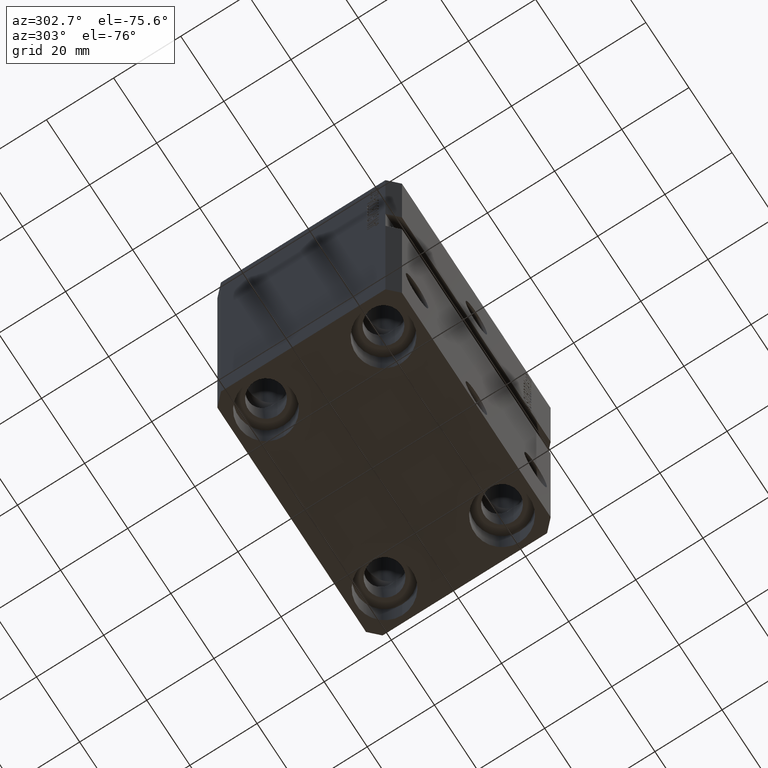
[diagram: clean part render]
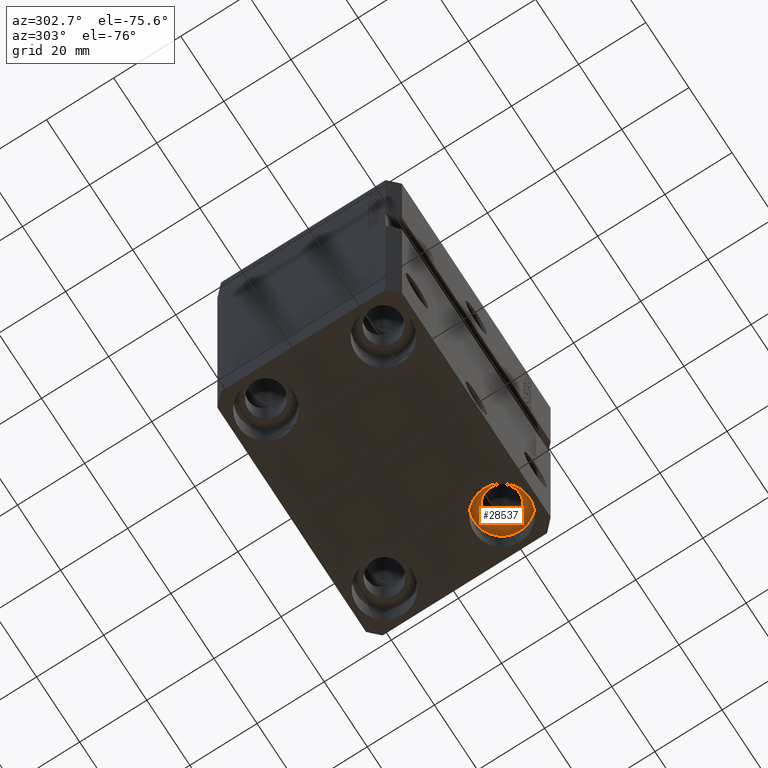
[diagram: same view with one face highlighted and labeled with its STEP entity id]
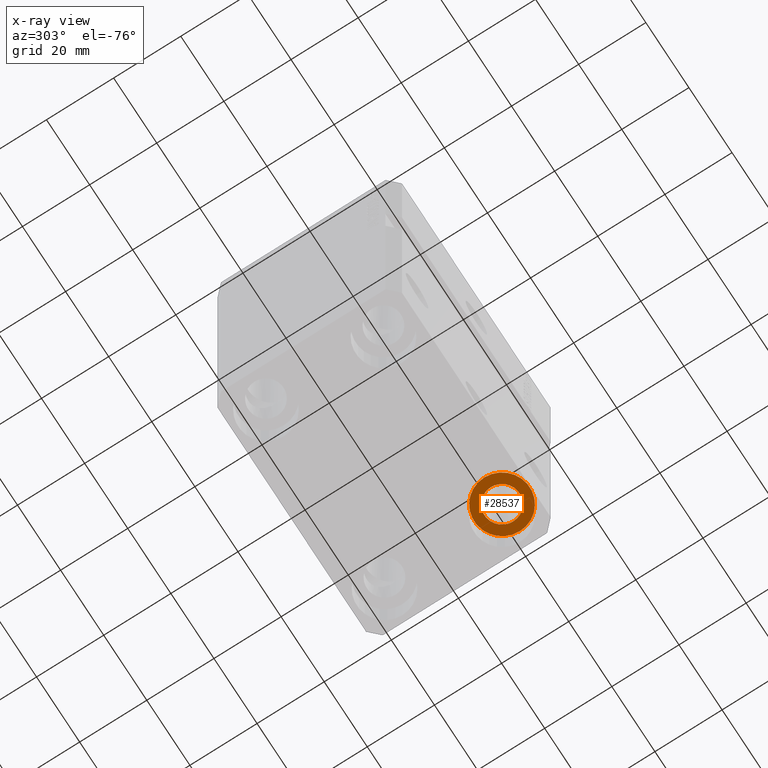
[diagram: x-ray of the same camera — body ghosted, the highlighted face saturated]
A machine part, auxiliary view. The second image highlights one B-rep face of the part: STEP entity #28537.
The next image is the same camera in x-ray: the body ghosted, the highlighted face saturated — about 0% of this face is hidden behind the body in this view.
In plain terms, the highlighted planar face has unit normal (0, 0, -1).
Its self-contained STEP definition (entity closure, byte-faithful):
#2364 = CARTESIAN_POINT ( 'NONE',  ( 19.25000000000000000, -17.50000000000000000, -99.00000000000000000 ) ) ;
#4352 = CARTESIAN_POINT ( 'NONE',  ( 27.50000000000000355, -17.50000000000000000, -99.00000000000000000 ) ) ;
#9583 = DIRECTION ( 'NONE',  ( -0.000000000000000000, -0.000000000000000000, 1.000000000000000000 ) ) ;
#10174 = CARTESIAN_POINT ( 'NONE',  ( 27.50000000000000355, -17.50000000000000000, -99.00000000000000000 ) ) ;
#10601 = CIRCLE ( 'NONE', #17307, 5.249999999999997335 ) ;
#11459 = DIRECTION ( 'NONE',  ( 1.000000000000000000, 0.000000000000000000, 0.000000000000000000 ) ) ;
#12390 = PLANE ( 'NONE',  #22841 ) ;
#14374 = EDGE_CURVE ( 'NONE', #33093, #29594, #10601, .T. ) ;
#14569 = VERTEX_POINT ( 'NONE', #16113 ) ;
#15664 = DIRECTION ( 'NONE',  ( 1.000000000000000000, 0.000000000000000000, 0.000000000000000000 ) ) ;
#16113 = CARTESIAN_POINT ( 'NONE',  ( 35.75000000000000711, -17.50000000000000000, -99.00000000000000000 ) ) ;
#16539 = EDGE_CURVE ( 'NONE', #32513, #14569, #37513, .T. ) ;
#17248 = AXIS2_PLACEMENT_3D ( 'NONE', #37371, #36461, #11459 ) ;
#17307 = AXIS2_PLACEMENT_3D ( 'NONE', #4352, #43851, #36155 ) ;
#19626 = CARTESIAN_POINT ( 'NONE',  ( 27.50000000000000355, -17.50000000000000000, -99.00000000000000000 ) ) ;
#21280 = CARTESIAN_POINT ( 'NONE',  ( 22.25000000000000711, -17.50000000000000000, -99.00000000000000000 ) ) ;
#22841 = AXIS2_PLACEMENT_3D ( 'NONE', #19626, #37166, #15664 ) ;
#23354 = ORIENTED_EDGE ( 'NONE', *, *, #14374, .F. ) ;
#25668 = ORIENTED_EDGE ( 'NONE', *, *, #31261, .F. ) ;
#27394 = AXIS2_PLACEMENT_3D ( 'NONE', #10174, #42196, #39581 ) ;
#27576 = DIRECTION ( 'NONE',  ( 1.000000000000000000, 0.000000000000000000, 0.000000000000000000 ) ) ;
#28326 = ORIENTED_EDGE ( 'NONE', *, *, #16539, .F. ) ;
#28537 = ADVANCED_FACE ( 'NONE', ( #44656, #36944 ), #12390, .T. ) ;
#29594 = VERTEX_POINT ( 'NONE', #21280 ) ;
#31083 = CARTESIAN_POINT ( 'NONE',  ( 27.50000000000000355, -17.50000000000000000, -99.00000000000000000 ) ) ;
#31261 = EDGE_CURVE ( 'NONE', #29594, #33093, #35515, .T. ) ;
#32314 = AXIS2_PLACEMENT_3D ( 'NONE', #31083, #9583, #27576 ) ;
#32513 = VERTEX_POINT ( 'NONE', #2364 ) ;
#33093 = VERTEX_POINT ( 'NONE', #38465 ) ;
#33668 = CIRCLE ( 'NONE', #17248, 8.250000000000000000 ) ;
#34108 = ORIENTED_EDGE ( 'NONE', *, *, #37594, .F. ) ;
#35515 = CIRCLE ( 'NONE', #27394, 5.249999999999997335 ) ;
#36155 = DIRECTION ( 'NONE',  ( -1.000000000000000000, 0.000000000000000000, 0.000000000000000000 ) ) ;
#36461 = DIRECTION ( 'NONE',  ( -0.000000000000000000, -0.000000000000000000, 1.000000000000000000 ) ) ;
#36944 = FACE_OUTER_BOUND ( 'NONE', #42755, .T. ) ;
#37166 = DIRECTION ( 'NONE',  ( 0.000000000000000000, 0.000000000000000000, -1.000000000000000000 ) ) ;
#37371 = CARTESIAN_POINT ( 'NONE',  ( 27.50000000000000355, -17.50000000000000000, -99.00000000000000000 ) ) ;
#37513 = CIRCLE ( 'NONE', #32314, 8.250000000000000000 ) ;
#37594 = EDGE_CURVE ( 'NONE', #14569, #32513, #33668, .T. ) ;
#38465 = CARTESIAN_POINT ( 'NONE',  ( 32.75000000000000000, -17.50000000000000000, -99.00000000000000000 ) ) ;
#39180 = EDGE_LOOP ( 'NONE', ( #23354, #25668 ) ) ;
#39581 = DIRECTION ( 'NONE',  ( -1.000000000000000000, 0.000000000000000000, 0.000000000000000000 ) ) ;
#42196 = DIRECTION ( 'NONE',  ( 0.000000000000000000, 0.000000000000000000, -1.000000000000000000 ) ) ;
#42755 = EDGE_LOOP ( 'NONE', ( #28326, #34108 ) ) ;
#43851 = DIRECTION ( 'NONE',  ( 0.000000000000000000, 0.000000000000000000, -1.000000000000000000 ) ) ;
#44656 = FACE_BOUND ( 'NONE', #39180, .T. ) ;